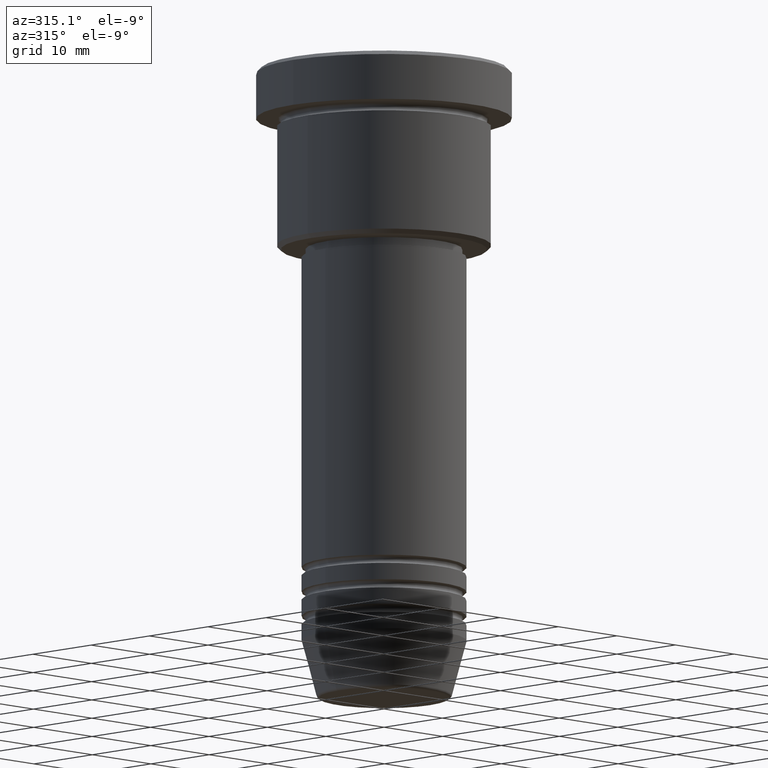
[diagram: clean part render]
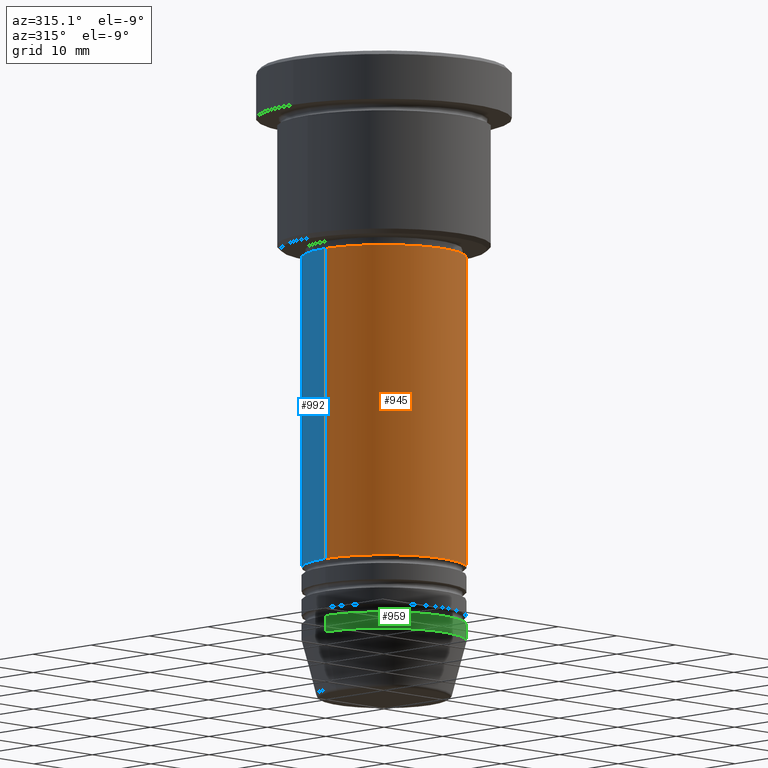
[diagram: same view with three faces highlighted in distinct colors, each labeled with its STEP entity id]
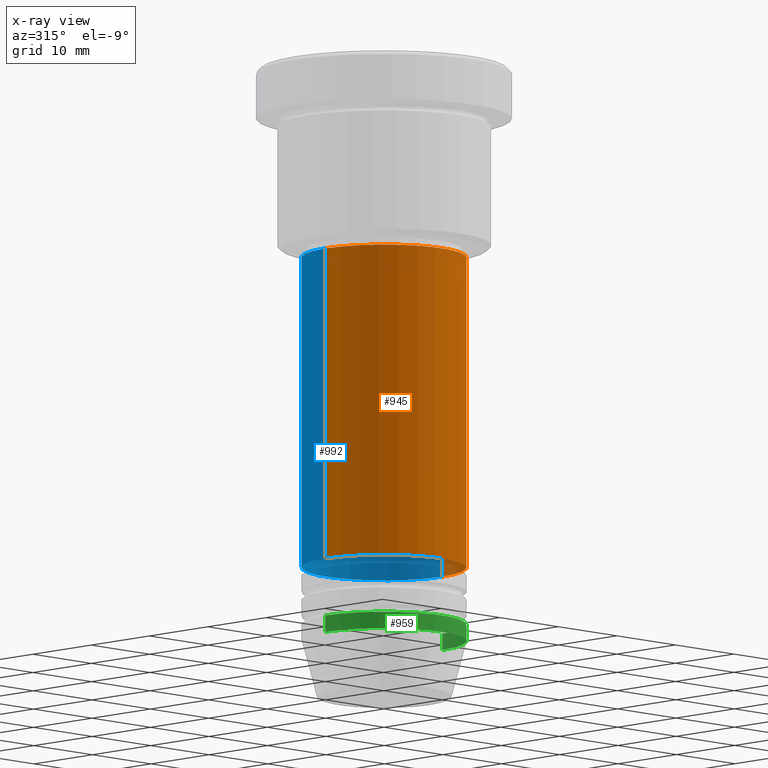
[diagram: x-ray of the same camera — body ghosted, the three highlighted faces saturated]
A machine part, auxiliary view with three faces highlighted in distinct colors.
The next image is the same camera in x-ray (body ghosted, the three faces saturated) — at least one of them is partly hidden behind the body in this view.
Their STEP definitions:

[orange] entity #945 — the highlighted cylindrical surface (partial cylindrical patch) has radius 10 mm, axis along (-0, -0, 1).
#17 = DIRECTION ( 'NONE',  ( -0.000000000000000000, -0.000000000000000000, 1.000000000000000000 ) ) ;
#26 = CARTESIAN_POINT ( 'NONE',  ( 0.000000000000000000, 0.000000000000000000, 0.000000000000000000 ) ) ;
#34 = DIRECTION ( 'NONE',  ( 1.000000000000000000, 0.000000000000000000, 0.000000000000000000 ) ) ;
#82 = AXIS2_PLACEMENT_3D ( 'NONE', #26, #851, #34 ) ;
#124 = DIRECTION ( 'NONE',  ( 1.000000000000000000, 0.000000000000000000, 0.000000000000000000 ) ) ;
#129 = EDGE_CURVE ( 'NONE', #674, #695, #273, .T. ) ;
#130 = AXIS2_PLACEMENT_3D ( 'NONE', #661, #17, #124 ) ;
#152 = ORIENTED_EDGE ( 'NONE', *, *, #929, .F. ) ;
#166 = ORIENTED_EDGE ( 'NONE', *, *, #129, .F. ) ;
#220 = DIRECTION ( 'NONE',  ( -0.000000000000000000, -0.000000000000000000, 1.000000000000000000 ) ) ;
#273 = LINE ( 'NONE', #903, #632 ) ;
#299 = CARTESIAN_POINT ( 'NONE',  ( 10.00000000000000000, 0.000000000000000000, 0.000000000000000000 ) ) ;
#332 = CARTESIAN_POINT ( 'NONE',  ( 10.00000000000000000, 0.000000000000000000, -60.99999999999998579 ) ) ;
#336 = CARTESIAN_POINT ( 'NONE',  ( 0.000000000000000000, 0.000000000000000000, -60.99999999999998579 ) ) ;
#338 = CARTESIAN_POINT ( 'NONE',  ( -10.00000000000000000, 1.224646799147353256E-15, -60.99999999999998579 ) ) ;
#502 = VERTEX_POINT ( 'NONE', #1059 ) ;
#525 = DIRECTION ( 'NONE',  ( -0.000000000000000000, -0.000000000000000000, 1.000000000000000000 ) ) ;
#582 = FACE_OUTER_BOUND ( 'NONE', #1063, .T. ) ;
#614 = CIRCLE ( 'NONE', #1142, 10.00000000000000000 ) ;
#632 = VECTOR ( 'NONE', #651, 1000.000000000000000 ) ;
#649 = CIRCLE ( 'NONE', #130, 10.00000000000000000 ) ;
#651 = DIRECTION ( 'NONE',  ( -0.000000000000000000, -0.000000000000000000, 1.000000000000000000 ) ) ;
#660 = ORIENTED_EDGE ( 'NONE', *, *, #925, .T. ) ;
#661 = CARTESIAN_POINT ( 'NONE',  ( 0.000000000000000000, 0.000000000000000000, -23.00000000000000711 ) ) ;
#674 = VERTEX_POINT ( 'NONE', #338 ) ;
#690 = CARTESIAN_POINT ( 'NONE',  ( -10.00000000000000000, 1.224646799147353256E-15, -23.00000000000000711 ) ) ;
#695 = VERTEX_POINT ( 'NONE', #690 ) ;
#750 = LINE ( 'NONE', #299, #854 ) ;
#851 = DIRECTION ( 'NONE',  ( -0.000000000000000000, -0.000000000000000000, 1.000000000000000000 ) ) ;
#854 = VECTOR ( 'NONE', #220, 1000.000000000000000 ) ;
#903 = CARTESIAN_POINT ( 'NONE',  ( -10.00000000000000000, 1.224646799147353256E-15, 0.000000000000000000 ) ) ;
#917 = ORIENTED_EDGE ( 'NONE', *, *, #980, .T. ) ;
#925 = EDGE_CURVE ( 'NONE', #951, #502, #750, .T. ) ;
#929 = EDGE_CURVE ( 'NONE', #695, #502, #649, .T. ) ;
#938 = CYLINDRICAL_SURFACE ( 'NONE', #82, 10.00000000000000000 ) ;
#945 = ADVANCED_FACE ( 'NONE', ( #582 ), #938, .T. ) ;
#951 = VERTEX_POINT ( 'NONE', #332 ) ;
#980 = EDGE_CURVE ( 'NONE', #674, #951, #614, .T. ) ;
#1059 = CARTESIAN_POINT ( 'NONE',  ( 10.00000000000000000, 0.000000000000000000, -23.00000000000000711 ) ) ;
#1063 = EDGE_LOOP ( 'NONE', ( #166, #917, #660, #152 ) ) ;
#1142 = AXIS2_PLACEMENT_3D ( 'NONE', #336, #525, #1158 ) ;
#1158 = DIRECTION ( 'NONE',  ( 1.000000000000000000, 0.000000000000000000, 0.000000000000000000 ) ) ;

[blue] entity #992 — the highlighted cylindrical surface (partial cylindrical patch) has radius 10 mm, axis along (-0, -0, 1).
#64 = EDGE_LOOP ( 'NONE', ( #118, #183, #606, #464 ) ) ;
#93 = DIRECTION ( 'NONE',  ( -0.000000000000000000, -0.000000000000000000, 1.000000000000000000 ) ) ;
#118 = ORIENTED_EDGE ( 'NONE', *, *, #201, .T. ) ;
#129 = EDGE_CURVE ( 'NONE', #674, #695, #273, .T. ) ;
#183 = ORIENTED_EDGE ( 'NONE', *, *, #129, .T. ) ;
#201 = EDGE_CURVE ( 'NONE', #951, #674, #341, .T. ) ;
#220 = DIRECTION ( 'NONE',  ( -0.000000000000000000, -0.000000000000000000, 1.000000000000000000 ) ) ;
#245 = DIRECTION ( 'NONE',  ( 1.000000000000000000, 0.000000000000000000, 0.000000000000000000 ) ) ;
#273 = LINE ( 'NONE', #903, #632 ) ;
#299 = CARTESIAN_POINT ( 'NONE',  ( 10.00000000000000000, 0.000000000000000000, 0.000000000000000000 ) ) ;
#332 = CARTESIAN_POINT ( 'NONE',  ( 10.00000000000000000, 0.000000000000000000, -60.99999999999998579 ) ) ;
#338 = CARTESIAN_POINT ( 'NONE',  ( -10.00000000000000000, 1.224646799147353256E-15, -60.99999999999998579 ) ) ;
#341 = CIRCLE ( 'NONE', #382, 10.00000000000000000 ) ;
#382 = AXIS2_PLACEMENT_3D ( 'NONE', #1014, #93, #1088 ) ;
#386 = EDGE_CURVE ( 'NONE', #502, #695, #533, .T. ) ;
#464 = ORIENTED_EDGE ( 'NONE', *, *, #925, .F. ) ;
#502 = VERTEX_POINT ( 'NONE', #1059 ) ;
#533 = CIRCLE ( 'NONE', #611, 10.00000000000000000 ) ;
#603 = DIRECTION ( 'NONE',  ( 1.000000000000000000, 0.000000000000000000, 0.000000000000000000 ) ) ;
#606 = ORIENTED_EDGE ( 'NONE', *, *, #386, .F. ) ;
#611 = AXIS2_PLACEMENT_3D ( 'NONE', #787, #977, #603 ) ;
#632 = VECTOR ( 'NONE', #651, 1000.000000000000000 ) ;
#651 = DIRECTION ( 'NONE',  ( -0.000000000000000000, -0.000000000000000000, 1.000000000000000000 ) ) ;
#674 = VERTEX_POINT ( 'NONE', #338 ) ;
#690 = CARTESIAN_POINT ( 'NONE',  ( -10.00000000000000000, 1.224646799147353256E-15, -23.00000000000000711 ) ) ;
#695 = VERTEX_POINT ( 'NONE', #690 ) ;
#701 = FACE_OUTER_BOUND ( 'NONE', #64, .T. ) ;
#710 = CYLINDRICAL_SURFACE ( 'NONE', #1090, 10.00000000000000000 ) ;
#750 = LINE ( 'NONE', #299, #854 ) ;
#787 = CARTESIAN_POINT ( 'NONE',  ( 0.000000000000000000, 0.000000000000000000, -23.00000000000000711 ) ) ;
#795 = CARTESIAN_POINT ( 'NONE',  ( 0.000000000000000000, 0.000000000000000000, 0.000000000000000000 ) ) ;
#854 = VECTOR ( 'NONE', #220, 1000.000000000000000 ) ;
#903 = CARTESIAN_POINT ( 'NONE',  ( -10.00000000000000000, 1.224646799147353256E-15, 0.000000000000000000 ) ) ;
#925 = EDGE_CURVE ( 'NONE', #951, #502, #750, .T. ) ;
#951 = VERTEX_POINT ( 'NONE', #332 ) ;
#977 = DIRECTION ( 'NONE',  ( -0.000000000000000000, -0.000000000000000000, 1.000000000000000000 ) ) ;
#992 = ADVANCED_FACE ( 'NONE', ( #701 ), #710, .T. ) ;
#1014 = CARTESIAN_POINT ( 'NONE',  ( 0.000000000000000000, 0.000000000000000000, -60.99999999999998579 ) ) ;
#1056 = DIRECTION ( 'NONE',  ( -0.000000000000000000, -0.000000000000000000, 1.000000000000000000 ) ) ;
#1059 = CARTESIAN_POINT ( 'NONE',  ( 10.00000000000000000, 0.000000000000000000, -23.00000000000000711 ) ) ;
#1088 = DIRECTION ( 'NONE',  ( 1.000000000000000000, 0.000000000000000000, 0.000000000000000000 ) ) ;
#1090 = AXIS2_PLACEMENT_3D ( 'NONE', #795, #1056, #245 ) ;

[green] entity #959 — the highlighted cylindrical surface (partial cylindrical patch) has radius 10 mm, axis along (-0, -0, 1).
#50 = CARTESIAN_POINT ( 'NONE',  ( 0.000000000000000000, 0.000000000000000000, 0.000000000000000000 ) ) ;
#51 = DIRECTION ( 'NONE',  ( -0.000000000000000000, -0.000000000000000000, 1.000000000000000000 ) ) ;
#181 = CARTESIAN_POINT ( 'NONE',  ( -10.00000000000000000, 1.224646799147353256E-15, -68.00000000000000000 ) ) ;
#232 = EDGE_LOOP ( 'NONE', ( #1021, #748, #910, #565 ) ) ;
#235 = DIRECTION ( 'NONE',  ( 1.000000000000000000, 0.000000000000000000, 0.000000000000000000 ) ) ;
#254 = VERTEX_POINT ( 'NONE', #642 ) ;
#288 = AXIS2_PLACEMENT_3D ( 'NONE', #50, #768, #1062 ) ;
#339 = LINE ( 'NONE', #1068, #1085 ) ;
#377 = EDGE_CURVE ( 'NONE', #447, #558, #518, .T. ) ;
#447 = VERTEX_POINT ( 'NONE', #799 ) ;
#512 = EDGE_CURVE ( 'NONE', #254, #1019, #339, .T. ) ;
#518 = LINE ( 'NONE', #1054, #778 ) ;
#536 = DIRECTION ( 'NONE',  ( -0.000000000000000000, -0.000000000000000000, 1.000000000000000000 ) ) ;
#552 = AXIS2_PLACEMENT_3D ( 'NONE', #1078, #51, #235 ) ;
#558 = VERTEX_POINT ( 'NONE', #181 ) ;
#565 = ORIENTED_EDGE ( 'NONE', *, *, #715, .F. ) ;
#613 = CIRCLE ( 'NONE', #552, 10.00000000000000000 ) ;
#642 = CARTESIAN_POINT ( 'NONE',  ( 10.00000000000000000, 0.000000000000000000, -70.00000000000000000 ) ) ;
#686 = CIRCLE ( 'NONE', #1122, 10.00000000000000000 ) ;
#688 = CARTESIAN_POINT ( 'NONE',  ( 10.00000000000000000, 0.000000000000000000, -68.00000000000000000 ) ) ;
#715 = EDGE_CURVE ( 'NONE', #558, #1019, #613, .T. ) ;
#748 = ORIENTED_EDGE ( 'NONE', *, *, #1013, .T. ) ;
#768 = DIRECTION ( 'NONE',  ( -0.000000000000000000, -0.000000000000000000, 1.000000000000000000 ) ) ;
#778 = VECTOR ( 'NONE', #887, 1000.000000000000000 ) ;
#799 = CARTESIAN_POINT ( 'NONE',  ( -10.00000000000000000, 1.224646799147353256E-15, -70.00000000000000000 ) ) ;
#869 = DIRECTION ( 'NONE',  ( -0.000000000000000000, -0.000000000000000000, 1.000000000000000000 ) ) ;
#879 = CYLINDRICAL_SURFACE ( 'NONE', #288, 10.00000000000000000 ) ;
#887 = DIRECTION ( 'NONE',  ( -0.000000000000000000, -0.000000000000000000, 1.000000000000000000 ) ) ;
#910 = ORIENTED_EDGE ( 'NONE', *, *, #512, .T. ) ;
#952 = CARTESIAN_POINT ( 'NONE',  ( 0.000000000000000000, 0.000000000000000000, -70.00000000000000000 ) ) ;
#959 = ADVANCED_FACE ( 'NONE', ( #1137 ), #879, .T. ) ;
#979 = DIRECTION ( 'NONE',  ( 1.000000000000000000, 0.000000000000000000, 0.000000000000000000 ) ) ;
#1013 = EDGE_CURVE ( 'NONE', #447, #254, #686, .T. ) ;
#1019 = VERTEX_POINT ( 'NONE', #688 ) ;
#1021 = ORIENTED_EDGE ( 'NONE', *, *, #377, .F. ) ;
#1054 = CARTESIAN_POINT ( 'NONE',  ( -10.00000000000000000, 1.224646799147353256E-15, 0.000000000000000000 ) ) ;
#1062 = DIRECTION ( 'NONE',  ( 1.000000000000000000, 0.000000000000000000, 0.000000000000000000 ) ) ;
#1068 = CARTESIAN_POINT ( 'NONE',  ( 10.00000000000000000, 0.000000000000000000, 0.000000000000000000 ) ) ;
#1078 = CARTESIAN_POINT ( 'NONE',  ( 0.000000000000000000, 0.000000000000000000, -68.00000000000000000 ) ) ;
#1085 = VECTOR ( 'NONE', #536, 1000.000000000000000 ) ;
#1122 = AXIS2_PLACEMENT_3D ( 'NONE', #952, #869, #979 ) ;
#1137 = FACE_OUTER_BOUND ( 'NONE', #232, .T. ) ;